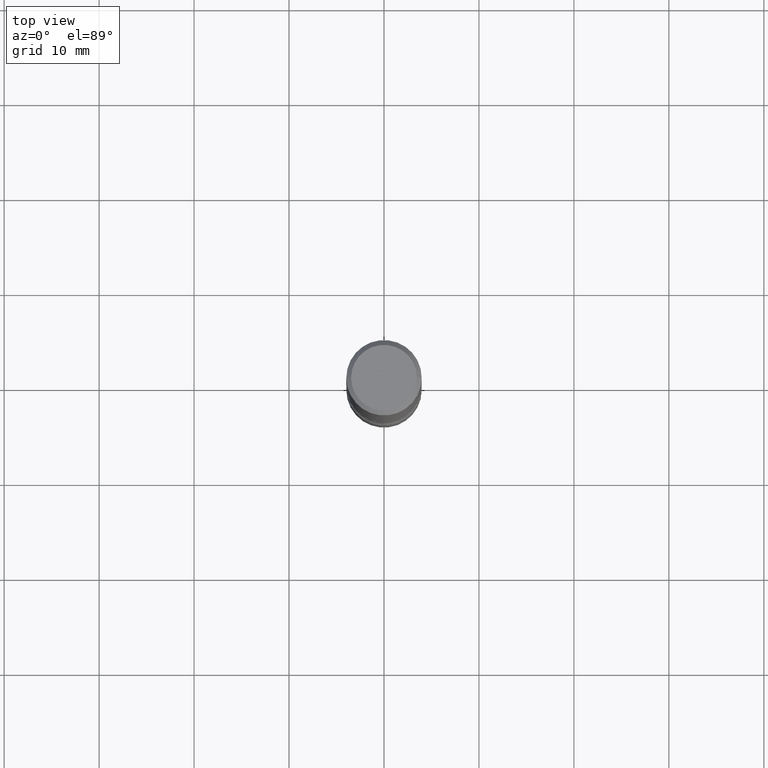
[diagram: clean part render]
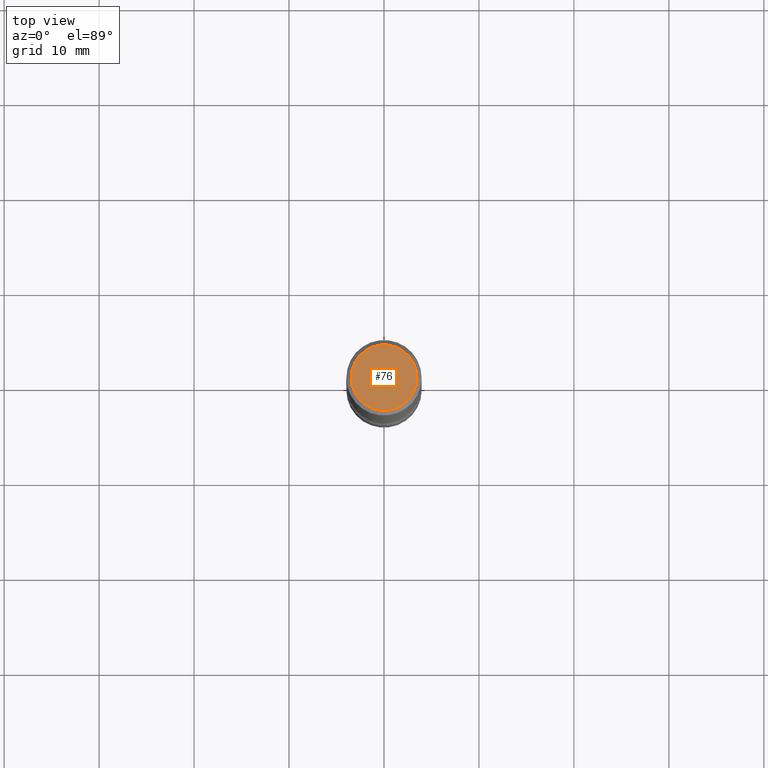
[diagram: same view with one face highlighted and labeled with its STEP entity id]
A machine part, top view. The second image highlights one B-rep face of the part: STEP entity #76.
In plain terms, the highlighted planar face has unit normal (0, -0, -1).
Its self-contained STEP definition (entity closure, byte-faithful):
#21 = CARTESIAN_POINT ( 'NONE',  ( 0.1362499999999998712, -1.038262645562517138E-15, 6.957025900226689470E-30 ) ) ;
#34 = EDGE_LOOP ( 'NONE', ( #549, #510 ) ) ;
#49 = EDGE_CURVE ( 'NONE', #338, #171, #219, .T. ) ;
#54 = DIRECTION ( 'NONE',  ( 1.000000000000000000, -6.982962677686266711E-15, 4.876176775795936353E-29 ) ) ;
#62 = CARTESIAN_POINT ( 'NONE',  ( 0.000000000000000000, 0.000000000000000000, 0.000000000000000000 ) ) ;
#68 = CIRCLE ( 'NONE', #383, 0.1362499999999998712 ) ;
#76 = ADVANCED_FACE ( 'NONE', ( #149 ), #323, .F. ) ;
#149 = FACE_OUTER_BOUND ( 'NONE', #34, .T. ) ;
#171 = VERTEX_POINT ( 'NONE', #21 ) ;
#219 = CIRCLE ( 'NONE', #340, 0.1362499999999998712 ) ;
#224 = CARTESIAN_POINT ( 'NONE',  ( -0.1362499999999998712, 9.863434782231840290E-16, -6.775751096333132877E-30 ) ) ;
#323 = PLANE ( 'NONE',  #496 ) ;
#338 = VERTEX_POINT ( 'NONE', #224 ) ;
#340 = AXIS2_PLACEMENT_3D ( 'NONE', #354, #398, #530 ) ;
#344 = DIRECTION ( 'NONE',  ( 2.438088387897960049E-29, -3.491481338843145188E-15, -1.000000000000000000 ) ) ;
#354 = CARTESIAN_POINT ( 'NONE',  ( 0.000000000000000000, 0.000000000000000000, 0.000000000000000000 ) ) ;
#383 = AXIS2_PLACEMENT_3D ( 'NONE', #62, #482, #54 ) ;
#398 = DIRECTION ( 'NONE',  ( -2.445468806185136597E-29, 3.491481338843145583E-15, 1.000000000000000000 ) ) ;
#399 = EDGE_CURVE ( 'NONE', #171, #338, #68, .T. ) ;
#482 = DIRECTION ( 'NONE',  ( -2.445468806185136597E-29, 3.491481338843145583E-15, 1.000000000000000000 ) ) ;
#489 = CARTESIAN_POINT ( 'NONE',  ( 9.514286648347529716E-16, 0.1362499999999998712, -4.757143324173781621E-16 ) ) ;
#496 = AXIS2_PLACEMENT_3D ( 'NONE', #489, #344, #521 ) ;
#510 = ORIENTED_EDGE ( 'NONE', *, *, #399, .T. ) ;
#521 = DIRECTION ( 'NONE',  ( -1.000000000000000000, 6.982962677686265922E-15, -4.876176775795935793E-29 ) ) ;
#530 = DIRECTION ( 'NONE',  ( 1.000000000000000000, -6.982962677686266711E-15, 4.876176775795936353E-29 ) ) ;
#549 = ORIENTED_EDGE ( 'NONE', *, *, #49, .T. ) ;